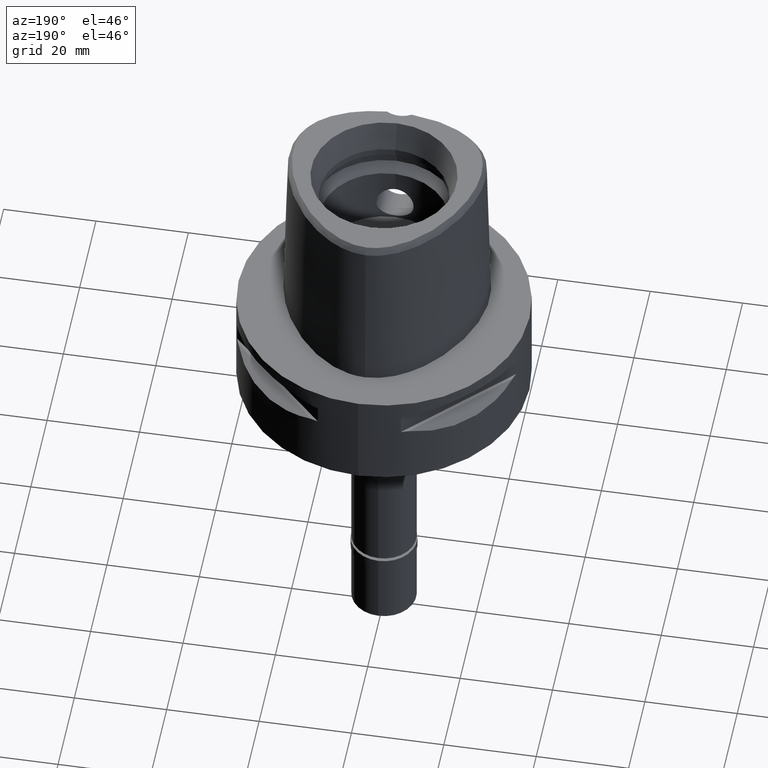
[diagram: clean part render]
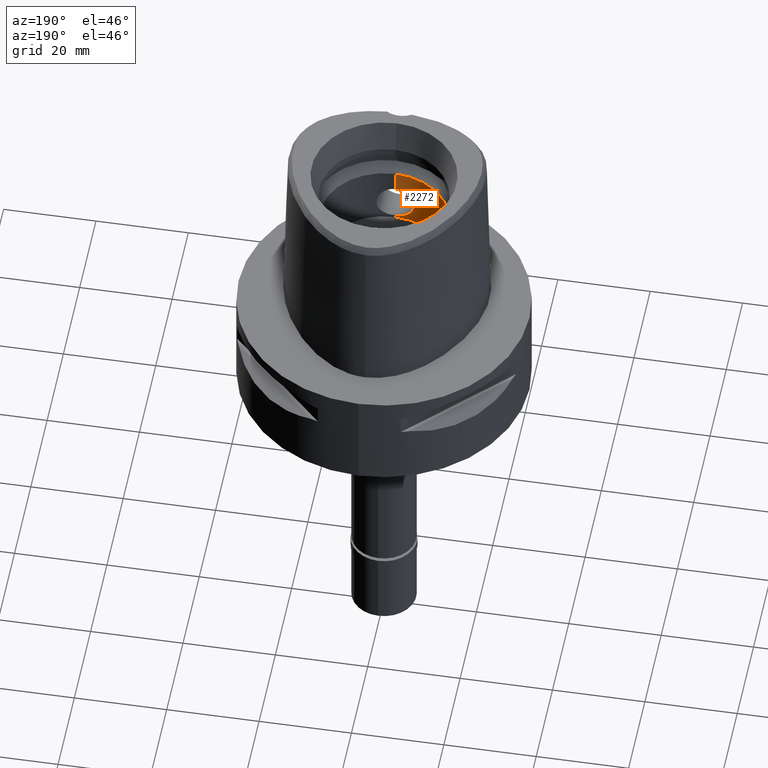
[diagram: same view with one face highlighted and labeled with its STEP entity id]
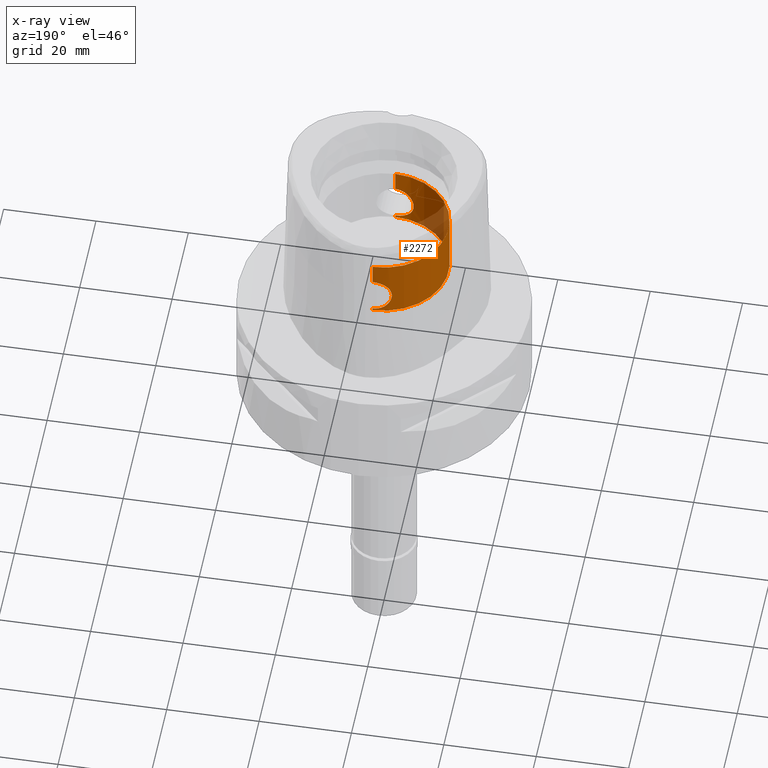
[diagram: x-ray of the same camera — body ghosted, the highlighted face saturated]
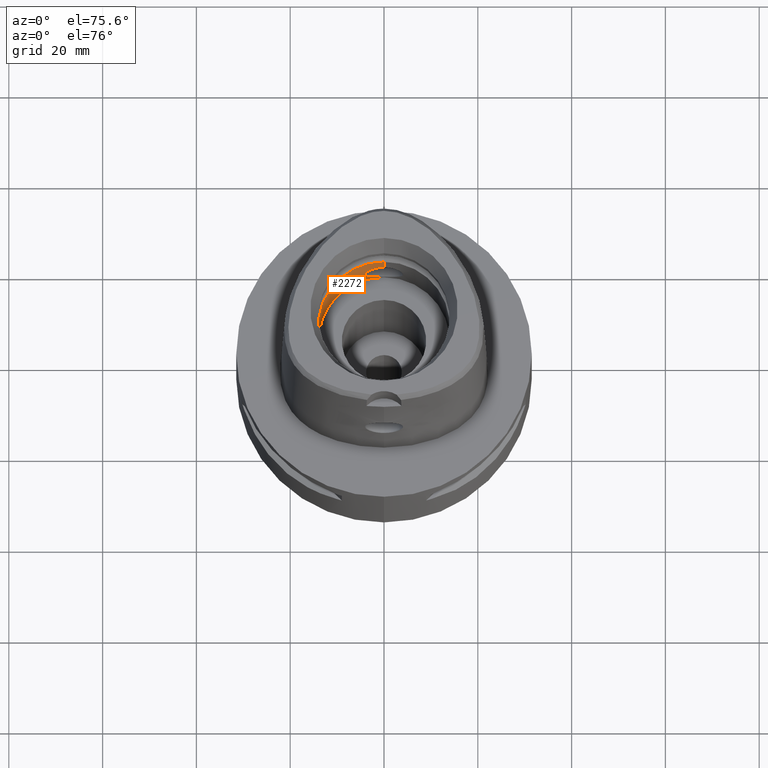
[diagram: same view with one face highlighted and labeled with its STEP entity id]
A machine part, auxiliary view. The second image highlights one B-rep face of the part: STEP entity #2272.
The next image is the same camera in x-ray: the body ghosted, the highlighted face saturated — about 12% of this face is hidden behind the body in this view.
A second angle (auxiliary view) of the same face is appended — the face is thin or edge-on in the first view.
In plain terms, the highlighted cylindrical surface (partial cylindrical patch) has radius 14 mm, axis along (0, 0, 1).
Its self-contained STEP definition (entity closure, byte-faithful):
#83 = CARTESIAN_POINT ( 'NONE',  ( -3.925365162342238534, 13.43890284051469841, 16.53186132714332146 ) ) ;
#109 = CARTESIAN_POINT ( 'NONE',  ( -3.379310550229385424, 13.58604378653552125, 13.26778871574185992 ) ) ;
#119 = FACE_OUTER_BOUND ( 'NONE', #4032, .T. ) ;
#132 = CARTESIAN_POINT ( 'NONE',  ( -3.651131004707755867, 13.51578636749438900, 13.74236146889735899 ) ) ;
#155 = CARTESIAN_POINT ( 'NONE',  ( -3.021351022777473361, 13.67020000561565141, 12.80268817491275790 ) ) ;
#170 = CARTESIAN_POINT ( 'NONE',  ( 0.0000000000000000000, 14.00000000000000000, 24.19999999999999929 ) ) ;
#182 = CARTESIAN_POINT ( 'NONE',  ( -2.358129775491658808, 13.79992184182584758, 12.20719851427345581 ) ) ;
#184 = VERTEX_POINT ( 'NONE', #3442 ) ;
#201 = CARTESIAN_POINT ( 'NONE',  ( -3.734034901120667715, -13.49288178664349225, 13.93170759821282978 ) ) ;
#212 = DIRECTION ( 'NONE',  ( 0.0000000000000000000, -1.000000000000000000, 0.0000000000000000000 ) ) ;
#215 = ORIENTED_EDGE ( 'NONE', *, *, #1820, .T. ) ;
#223 = CARTESIAN_POINT ( 'NONE',  ( -1.012712309533722266, -13.96360199423262749, 11.57638702676245579 ) ) ;
#249 = CARTESIAN_POINT ( 'NONE',  ( -2.555012852223031761, -13.76484697358297460, 12.35693833583290058 ) ) ;
#269 = CARTESIAN_POINT ( 'NONE',  ( -2.324657710884288075, -13.80563617599062454, 18.81657064960871750 ) ) ;
#275 = CARTESIAN_POINT ( 'NONE',  ( -3.847560840230902279, -13.46133700407186495, 14.20480240807005323 ) ) ;
#283 = VERTEX_POINT ( 'NONE', #1607 ) ;
#294 = CARTESIAN_POINT ( 'NONE',  ( -1.831923549672926477, -13.87967697729060035, 19.11262542192537950 ) ) ;
#299 = CARTESIAN_POINT ( 'NONE',  ( -2.609777199255221003, -13.75461077519338815, 12.40205918377870198 ) ) ;
#317 = CARTESIAN_POINT ( 'NONE',  ( -2.358108071912459636, -13.79992559224141147, 18.79281702996953030 ) ) ;
#325 = CARTESIAN_POINT ( 'NONE',  ( -3.792805150613220100, -13.47648688778276416, 16.92098040476935594 ) ) ;
#346 = CARTESIAN_POINT ( 'NONE',  ( -3.021323242860278757, -13.67020613662201356, 18.19734294959320664 ) ) ;
#362 = CARTESIAN_POINT ( 'NONE',  ( -2.609741565278369979, 13.75461757722162126, 18.59797076234260871 ) ) ;
#382 = CARTESIAN_POINT ( 'NONE',  ( -1.634612803771663403, 13.90466238694206780, 19.20741225445335942 ) ) ;
#426 = CARTESIAN_POINT ( 'NONE',  ( -3.412447717858382301, -13.57777954043734425, 17.68134576836865079 ) ) ;
#453 = CARTESIAN_POINT ( 'NONE',  ( -2.213941909848230249, 13.82381574778073130, 18.89130965221159641 ) ) ;
#476 = CARTESIAN_POINT ( 'NONE',  ( -1.029082083449200713, 13.97152853599253319, 11.54362413269657139 ) ) ;
#482 = CARTESIAN_POINT ( 'NONE',  ( 0.0000000000000000000, 14.00000000000000000, 19.55000000000000071 ) ) ;
#498 = CARTESIAN_POINT ( 'NONE',  ( -2.262705485419163054, 13.81592537114580566, 12.14103098720228679 ) ) ;
#524 = CARTESIAN_POINT ( 'NONE',  ( -3.697590507856375108, 13.50295664692586506, 17.15287807673693976 ) ) ;
#547 = CARTESIAN_POINT ( 'NONE',  ( -3.526250119772631031, 13.54878316617015699, 13.50678668749269384 ) ) ;
#565 = CARTESIAN_POINT ( 'NONE',  ( -3.719169916383281205, -13.49700080574766936, 13.89666466194681149 ) ) ;
#571 = CARTESIAN_POINT ( 'NONE',  ( -1.571622442681948728, 13.91143413234359194, 11.76734124217015420 ) ) ;
#590 = CARTESIAN_POINT ( 'NONE',  ( -0.2469654516578040637, -14.00000000000000178, 11.44999999999999751 ) ) ;
#600 = CARTESIAN_POINT ( 'NONE',  ( 0.0000000000000000000, 14.00000000000000000, 11.00000000000000000 ) ) ;
#615 = CARTESIAN_POINT ( 'NONE',  ( -2.218906381581557063, -13.82301934416505773, 12.11193804182300049 ) ) ;
#620 = CARTESIAN_POINT ( 'NONE',  ( -0.4993407830487584520, 13.99999999999999645, 11.44999999999999751 ) ) ;
#636 = CARTESIAN_POINT ( 'NONE',  ( -3.145387978891098779, -13.64232260952897136, 18.05215185636368247 ) ) ;
#664 = CARTESIAN_POINT ( 'NONE',  ( -2.213979135491244143, -13.82380976881560031, 12.10871464975564749 ) ) ;
#689 = CARTESIAN_POINT ( 'NONE',  ( -4.019830419769267138, -13.41085009236225645, 14.98991540867759831 ) ) ;
#707 = CARTESIAN_POINT ( 'NONE',  ( -1.559432113073478288, -13.91280656169065821, 19.23777656501210487 ) ) ;
#726 = CARTESIAN_POINT ( 'NONE',  ( -2.206458694403367726, 13.82501216787645681, 18.89618314689560563 ) ) ;
#770 = CARTESIAN_POINT ( 'NONE',  ( -2.833282652835806381, 13.71030165836393522, 18.39398494405404350 ) ) ;
#782 = VECTOR ( 'NONE', #3214, 1000.000000000000000 ) ;
#787 = CIRCLE ( 'NONE', #3808, 14.00000000000000000 ) ;
#798 = CARTESIAN_POINT ( 'NONE',  ( 0.0000000000000000000, -14.00000000000000000, 19.55000000000000071 ) ) ;
#800 = CARTESIAN_POINT ( 'NONE',  ( -1.012706264063385930, 13.96360253211542535, 19.42361449288681996 ) ) ;
#850 = CARTESIAN_POINT ( 'NONE',  ( -4.019809843161508134, 13.41085631805639267, 16.01024435030240767 ) ) ;
#874 = CARTESIAN_POINT ( 'NONE',  ( -3.761640784819787253, 13.48520403954923275, 13.99912269595868253 ) ) ;
#899 = CARTESIAN_POINT ( 'NONE',  ( -2.750910965615486425, 13.72764871314797119, 12.52253045585310964 ) ) ;
#922 = CARTESIAN_POINT ( 'NONE',  ( -1.831935694979672569, 13.87967536010571834, 11.88738069559548194 ) ) ;
#939 = CARTESIAN_POINT ( 'NONE',  ( -3.353424358366101643, -13.59245713650906673, 13.22908235703174107 ) ) ;
#946 = CARTESIAN_POINT ( 'NONE',  ( -3.755227753165154780, 13.48699341544818253, 13.98314845892416081 ) ) ;
#965 = CARTESIAN_POINT ( 'NONE',  ( -3.607781059749434416, -13.52732055342975315, 13.65853826094933687 ) ) ;
#976 = CARTESIAN_POINT ( 'NONE',  ( 0.0000000000000000000, 0.0000000000000000000, 11.00000000000000000 ) ) ;
#991 = CARTESIAN_POINT ( 'NONE',  ( -3.313184699048540072, -13.60235767227842096, 13.17057167031289744 ) ) ;
#1012 = CARTESIAN_POINT ( 'NONE',  ( -2.270168441564218487, -13.81470081046394682, 18.85393787176648317 ) ) ;
#1018 = CARTESIAN_POINT ( 'NONE',  ( -2.826776481428380006, -13.71164377476135243, 12.59966512012106143 ) ) ;
#1039 = CARTESIAN_POINT ( 'NONE',  ( -2.477086002765913619, -13.77907045266050012, 18.70484860139355376 ) ) ;
#1066 = CARTESIAN_POINT ( 'NONE',  ( -2.262680939054479978, -13.81592940916815060, 18.85898554796631998 ) ) ;
#1072 = CARTESIAN_POINT ( 'NONE',  ( -4.027089452593229701, -13.40881618561212818, 16.00364091066859018 ) ) ;
#1088 = CARTESIAN_POINT ( 'NONE',  ( -3.382835449347523671, -13.58516794404791383, 17.72686886806867435 ) ) ;
#1106 = CARTESIAN_POINT ( 'NONE',  ( -3.346018921403583146, 13.59428229746734829, 17.78182038492254335 ) ) ;
#1117 = AXIS2_PLACEMENT_3D ( 'NONE', #976, #4801, #212 ) ;
#1128 = CARTESIAN_POINT ( 'NONE',  ( -2.976320175289993486, 13.68063800314661371, 18.25312853236753341 ) ) ;
#1171 = CARTESIAN_POINT ( 'NONE',  ( -2.904292684485286102, -13.69547553576702192, 18.32302670779527176 ) ) ;
#1173 = CARTESIAN_POINT ( 'NONE',  ( -1.983184215533064787, 13.85889975698272636, 19.03188336225688104 ) ) ;
#1192 = VECTOR ( 'NONE', #1654, 1000.000000000000000 ) ;
#1227 = CARTESIAN_POINT ( 'NONE',  ( -3.953306027474014606, 13.43063046357534418, 14.61060429633075408 ) ) ;
#1250 = CARTESIAN_POINT ( 'NONE',  ( -2.477107187807540800, 13.77906657584262717, 12.29516774357917086 ) ) ;
#1258 = VERTEX_POINT ( 'NONE', #2788 ) ;
#1276 = CARTESIAN_POINT ( 'NONE',  ( -3.922131962950538675, 13.43972119090175354, 14.48144363887699626 ) ) ;
#1280 = CARTESIAN_POINT ( 'NONE',  ( 0.0000000000000000000, -14.00000000000000000, 19.55000000000000071 ) ) ;
#1298 = CARTESIAN_POINT ( 'NONE',  ( -1.686087381662598750, 13.89805129530453520, 11.81752317166705346 ) ) ;
#1301 = DIRECTION ( 'NONE',  ( 0.0000000000000000000, 0.0000000000000000000, 1.000000000000000000 ) ) ;
#1320 = CARTESIAN_POINT ( 'NONE',  ( -1.600043328953376642, 13.90819633065369842, 11.77943554682664029 ) ) ;
#1323 = CARTESIAN_POINT ( 'NONE',  ( 0.0000000000000000000, -14.00000000000000000, 19.55000000000000071 ) ) ;
#1338 = CARTESIAN_POINT ( 'NONE',  ( -1.983212526419743105, -13.85889570096420975, 11.96813247595848750 ) ) ;
#1341 = VECTOR ( 'NONE', #1301, 1000.000000000000000 ) ;
#1365 = CARTESIAN_POINT ( 'NONE',  ( -2.789590418607238220, -13.71926382878578288, 12.56377418278845504 ) ) ;
#1389 = CARTESIAN_POINT ( 'NONE',  ( -3.512628331526865821, -13.55245697554484252, 13.47955345271105720 ) ) ;
#1410 = CARTESIAN_POINT ( 'NONE',  ( -3.761606907749989404, -13.48521357189873981, 17.00096220363059274 ) ) ;
#1444 = CARTESIAN_POINT ( 'NONE',  ( -3.922099599626726718, -13.43973056494798612, 16.51867972472770063 ) ) ;
#1464 = CARTESIAN_POINT ( 'NONE',  ( -3.703589315040705543, -13.50137962951083459, 17.14320704428214626 ) ) ;
#1482 = CARTESIAN_POINT ( 'NONE',  ( 0.0000000000000000000, 14.00000000000000000, 19.55000000000000071 ) ) ;
#1504 = CARTESIAN_POINT ( 'NONE',  ( -1.749105788501651215, 13.89074138091394772, 19.15519283209804513 ) ) ;
#1542 = EDGE_CURVE ( 'NONE', #2726, #2252, #2496, .T. ) ;
#1552 = CARTESIAN_POINT ( 'NONE',  ( -3.651095676336898244, -13.51579605380715066, 17.25771149767267332 ) ) ;
#1555 = CARTESIAN_POINT ( 'NONE',  ( -0.8843538958436223396, 13.97226859589746262, 19.45441039601426780 ) ) ;
#1562 = EDGE_CURVE ( 'NONE', #283, #1258, #4058, .T. ) ;
#1605 = CARTESIAN_POINT ( 'NONE',  ( -3.719141286413738978, 13.49700888169047630, 17.10340174556556292 ) ) ;
#1607 = CARTESIAN_POINT ( 'NONE',  ( 0.0000000000000000000, 14.00000000000000000, 11.00000000000000000 ) ) ;
#1623 = CARTESIAN_POINT ( 'NONE',  ( 0.0000000000000000000, 0.0000000000000000000, 24.19999999999999929 ) ) ;
#1627 = CARTESIAN_POINT ( 'NONE',  ( -2.904327125639351248, 13.69546822798182006, 12.67700868776273815 ) ) ;
#1649 = CARTESIAN_POINT ( 'NONE',  ( -4.027110952382225939, 13.40880970406411876, 14.99652166335192582 ) ) ;
#1654 = DIRECTION ( 'NONE',  ( 0.0000000000000000000, 0.0000000000000000000, 1.000000000000000000 ) ) ;
#1675 = CARTESIAN_POINT ( 'NONE',  ( -2.131073088209908928, 13.83739862213081651, 12.05290093770904392 ) ) ;
#1696 = CARTESIAN_POINT ( 'NONE',  ( -4.049978934582115109, 13.40153109434733203, 15.25162441043622685 ) ) ;
#1710 = CARTESIAN_POINT ( 'NONE',  ( 0.0000000000000000000, -14.00000000000000000, 24.19999999999999929 ) ) ;
#1717 = CARTESIAN_POINT ( 'NONE',  ( -3.346049572253308568, -13.59427474891737120, 13.21822455956166742 ) ) ;
#1766 = CARTESIAN_POINT ( 'NONE',  ( -3.082282372579373320, -13.65694394277110746, 12.86939697141056982 ) ) ;
#1782 = ORIENTED_EDGE ( 'NONE', *, *, #3970, .F. ) ;
#1786 = CARTESIAN_POINT ( 'NONE',  ( -3.331071169110157104, -13.59802040080378127, 17.80513431074203723 ) ) ;
#1813 = CARTESIAN_POINT ( 'NONE',  ( 0.0000000000000000000, -14.00000000000000000, 11.00000000000000000 ) ) ;
#1820 = EDGE_CURVE ( 'NONE', #2285, #2252, #787, .T. ) ;
#1839 = CARTESIAN_POINT ( 'NONE',  ( -2.131051694124752149, -13.83740188295394269, 18.94711207276987253 ) ) ;
#1844 = CARTESIAN_POINT ( 'NONE',  ( -4.001310447421740690, -13.41645740486286975, 14.85992201994323381 ) ) ;
#1876 = CARTESIAN_POINT ( 'NONE',  ( -1.509683146060374570, 13.91832371278619362, 19.25813534163470919 ) ) ;
#1897 = CARTESIAN_POINT ( 'NONE',  ( -2.826733677213231211, 13.71165257480208410, 18.40037659590203845 ) ) ;
#1922 = CARTESIAN_POINT ( 'NONE',  ( -2.936101291707196026, -13.68870374988638439, 18.28991236403437881 ) ) ;
#1924 = CARTESIAN_POINT ( 'NONE',  ( -3.313156087630972024, 13.60236462085056175, 17.82946899553707709 ) ) ;
#1945 = DIRECTION ( 'NONE',  ( 0.0000000000000000000, 1.000000000000000000, 0.0000000000000000000 ) ) ;
#1950 = CARTESIAN_POINT ( 'NONE',  ( -2.072169707285811846, 13.84579259454496558, 18.97991273360965536 ) ) ;
#1974 = CARTESIAN_POINT ( 'NONE',  ( -2.398040422234643199, 13.79336776943800835, 18.76643699166558221 ) ) ;
#1998 = CARTESIAN_POINT ( 'NONE',  ( -3.736458655016853481, 13.49220923554634943, 17.06251515867592872 ) ) ;
#2019 = CARTESIAN_POINT ( 'NONE',  ( -3.847528114546067357, 13.46134616528927275, 16.79528946262643885 ) ) ;
#2044 = CARTESIAN_POINT ( 'NONE',  ( -3.792839415321074270, 13.47647720445098152, 14.07911095248699063 ) ) ;
#2072 = CARTESIAN_POINT ( 'NONE',  ( -4.050010510829319621, 13.40151602470820968, 15.62367220053247685 ) ) ;
#2090 = CARTESIAN_POINT ( 'NONE',  ( -1.749124970137840185, -13.89073896556024046, 11.84481614608584721 ) ) ;
#2116 = CARTESIAN_POINT ( 'NONE',  ( 0.0000000000000000000, -14.00000000000000000, 11.44999999999999929 ) ) ;
#2160 = CARTESIAN_POINT ( 'NONE',  ( -3.379279769507297360, -13.58605140470811534, 17.73225788171025030 ) ) ;
#2167 = CARTESIAN_POINT ( 'NONE',  ( -2.195272652538321267, -13.82679577862125697, 12.09655807399984262 ) ) ;
#2208 = CARTESIAN_POINT ( 'NONE',  ( -3.473317543067086621, -13.56237997985438426, 17.58321264728286693 ) ) ;
#2213 = CARTESIAN_POINT ( 'NONE',  ( -3.953275717035933390, -13.43063932535957505, 16.38952909542953407 ) ) ;
#2233 = CARTESIAN_POINT ( 'NONE',  ( -3.751516267919946745, -13.48802816047849795, 17.02600169488797732 ) ) ;
#2250 = CARTESIAN_POINT ( 'NONE',  ( -2.554978397349259911, 13.76485342384095212, 18.64308964410447089 ) ) ;
#2252 = VERTEX_POINT ( 'NONE', #1710 ) ;
#2272 = ADVANCED_FACE ( 'NONE', ( #119 ), #4234, .F. ) ;
#2273 = CARTESIAN_POINT ( 'NONE',  ( -3.291389730841669525, 13.60767728430549361, 17.86007817227883265 ) ) ;
#2285 = VERTEX_POINT ( 'NONE', #170 ) ;
#2296 = CARTESIAN_POINT ( 'NONE',  ( -3.512596035733583477, 13.55246554407546533, 17.52050250960606803 ) ) ;
#2310 = CIRCLE ( 'NONE', #1117, 14.00000000000000000 ) ;
#2320 = CARTESIAN_POINT ( 'NONE',  ( -3.268832484546335682, -13.61344831520168164, 17.89478866097769583 ) ) ;
#2321 = CARTESIAN_POINT ( 'NONE',  ( -3.335550015220702491, 13.59686070643671130, 17.79713041138287721 ) ) ;
#2343 = CARTESIAN_POINT ( 'NONE',  ( 0.0000000000000000000, -14.00000000000000000, 11.00000000000000000 ) ) ;
#2346 = CARTESIAN_POINT ( 'NONE',  ( -1.204860768877034749, 13.94800361730774441, 19.36720398920682840 ) ) ;
#2368 = CARTESIAN_POINT ( 'NONE',  ( -2.287961417577151657, 13.81176381413322218, 12.15814410366461473 ) ) ;
#2393 = CARTESIAN_POINT ( 'NONE',  ( -3.728097427948782183, 13.49452826340539779, 17.08235497505697964 ) ) ;
#2416 = CARTESIAN_POINT ( 'NONE',  ( -4.044171514740741991, 13.40338199514034478, 15.75277901723292828 ) ) ;
#2427 = VECTOR ( 'NONE', #2948, 1000.000000000000000 ) ;
#2441 = CARTESIAN_POINT ( 'NONE',  ( -3.771176360812481754, 13.48254127031982286, 14.02309580800305966 ) ) ;
#2459 = CARTESIAN_POINT ( 'NONE',  ( -3.207909801889438750, -13.62775995098249204, 13.02687971733560524 ) ) ;
#2466 = CARTESIAN_POINT ( 'NONE',  ( -3.864991936700474362, 13.45608299312539380, 14.28803614817276113 ) ) ;
#2486 = CARTESIAN_POINT ( 'NONE',  ( -3.353237812350305713, -13.59250310729059841, 13.22881030265781988 ) ) ;
#2496 = LINE ( 'NONE', #1323, #782 ) ;
#2514 = CARTESIAN_POINT ( 'NONE',  ( -1.634627542067088823, -13.90466063450469925, 11.79259409323903718 ) ) ;
#2540 = CARTESIAN_POINT ( 'NONE',  ( -3.350382862332021539, -13.59320680619205390, 13.22460088264036315 ) ) ;
#2545 = CARTESIAN_POINT ( 'NONE',  ( 0.0000000000000000000, 14.00000000000000000, 11.44999999999999929 ) ) ;
#2547 = ORIENTED_EDGE ( 'NONE', *, *, #3772, .F. ) ;
#2557 = CARTESIAN_POINT ( 'NONE',  ( -3.755193978868522464, -13.48700291079213009, 17.01693514898615334 ) ) ;
#2563 = CARTESIAN_POINT ( 'NONE',  ( -2.072201475309193963, -13.84578783145112624, 12.02010616845740287 ) ) ;
#2579 = CARTESIAN_POINT ( 'NONE',  ( -2.287937912488490433, -13.81176773107643463, 18.84187199136939128 ) ) ;
#2586 = CARTESIAN_POINT ( 'NONE',  ( -4.050016519469054721, -13.40151404079456476, 15.37653284281552679 ) ) ;
#2610 = EDGE_CURVE ( 'NONE', #184, #2285, #3870, .T. ) ;
#2643 = CARTESIAN_POINT ( 'NONE',  ( -3.244203933889227454, 13.61909597458700993, 17.92497467895347540 ) ) ;
#2645 = ORIENTED_EDGE ( 'NONE', *, *, #2970, .T. ) ;
#2666 = CARTESIAN_POINT ( 'NONE',  ( -0.2469645450537018838, 14.00000000000000000, 19.55000000000000426 ) ) ;
#2687 = CARTESIAN_POINT ( 'NONE',  ( -2.256602342493059243, -13.81692491008516299, 18.86307401461547428 ) ) ;
#2690 = CARTESIAN_POINT ( 'NONE',  ( -1.924243521165028392, 13.86719346395510932, 19.06428299887258859 ) ) ;
#2726 = VERTEX_POINT ( 'NONE', #1280 ) ;
#2740 = CARTESIAN_POINT ( 'NONE',  ( -3.751549856549362350, 13.48801872156404258, 13.97408088082220523 ) ) ;
#2760 = CARTESIAN_POINT ( 'NONE',  ( -2.634443624300868869, 13.75015732437147697, 12.42099918202132969 ) ) ;
#2784 = CARTESIAN_POINT ( 'NONE',  ( -2.257742642029090252, 13.81673809093031302, 12.13769318695560706 ) ) ;
#2788 = CARTESIAN_POINT ( 'NONE',  ( 0.0000000000000000000, 14.00000000000000000, 11.44999999999999929 ) ) ;
#2806 = CARTESIAN_POINT ( 'NONE',  ( -3.703624104408048012, 13.50136991639988437, 13.85687112133432031 ) ) ;
#2822 = DIRECTION ( 'NONE',  ( 0.0000000000000000000, 0.0000000000000000000, 1.000000000000000000 ) ) ;
#2826 = CARTESIAN_POINT ( 'NONE',  ( -1.924269530046975651, -13.86718984433881374, 11.93573099114258973 ) ) ;
#2832 = CARTESIAN_POINT ( 'NONE',  ( -1.559435365530769113, 13.91280614147713202, 11.76222479158524514 ) ) ;
#2851 = CARTESIAN_POINT ( 'NONE',  ( -2.206495634273682782, -13.82500625603302247, 12.10384085250651509 ) ) ;
#2876 = CARTESIAN_POINT ( 'NONE',  ( -2.811876215899639764, -13.71470550586680126, 12.58521701702220952 ) ) ;
#2895 = CARTESIAN_POINT ( 'NONE',  ( -3.526215793493937323, -13.54879215793920721, 17.49327392317799479 ) ) ;
#2903 = CARTESIAN_POINT ( 'NONE',  ( -3.291417599965290819, -13.60767057052336781, 13.13996068370695269 ) ) ;
#2904 = ORIENTED_EDGE ( 'NONE', *, *, #4025, .F. ) ;
#2923 = CARTESIAN_POINT ( 'NONE',  ( -1.571618383406467645, -13.91143464434279053, 19.23266046496124559 ) ) ;
#2927 = CARTESIAN_POINT ( 'NONE',  ( -1.412405941508137142, -13.92855808094171621, 11.70399751527032350 ) ) ;
#2948 = DIRECTION ( 'NONE',  ( 0.0000000000000000000, 0.0000000000000000000, 1.000000000000000000 ) ) ;
#2955 = CARTESIAN_POINT ( 'NONE',  ( -3.925397087776428151, -13.43889368793335137, 14.46825479304431461 ) ) ;
#2970 = EDGE_CURVE ( 'NONE', #4085, #283, #2310, .T. ) ;
#2974 = CARTESIAN_POINT ( 'NONE',  ( -1.686079774056026270, -13.89805225495445917, 19.18248030263400494 ) ) ;
#2988 = CARTESIAN_POINT ( 'NONE',  ( -2.789549051450811223, 13.71927222782416322, 18.43626510498189575 ) ) ;
#3010 = CARTESIAN_POINT ( 'NONE',  ( -3.353206584566348347, 13.59251082249012832, 17.77123580180266771 ) ) ;
#3033 = CARTESIAN_POINT ( 'NONE',  ( -0.5007259895757725232, 13.99306714897436521, 19.52734988002798744 ) ) ;
#3057 = CARTESIAN_POINT ( 'NONE',  ( -3.445973088962319242, -13.56934735979278983, 17.62837875858821590 ) ) ;
#3077 = DIRECTION ( 'NONE',  ( 0.0000000000000000000, 0.0000000000000000000, 1.000000000000000000 ) ) ;
#3078 = CARTESIAN_POINT ( 'NONE',  ( 0.0000000000000000000, -14.00000000000000000, 11.44999999999999929 ) ) ;
#3081 = CARTESIAN_POINT ( 'NONE',  ( -2.195236141594340218, 13.82680159019207444, 18.90346547399944654 ) ) ;
#3108 = CARTESIAN_POINT ( 'NONE',  ( -3.331098129623040638, 13.59801387529240557, 13.19490433802106999 ) ) ;
#3131 = CARTESIAN_POINT ( 'NONE',  ( -2.256627462073926171, 13.81692079054867861, 12.13694284039161531 ) ) ;
#3155 = CARTESIAN_POINT ( 'NONE',  ( -3.387853082217509915, 13.58391951359694616, 13.28077217744259464 ) ) ;
#3168 = CARTESIAN_POINT ( 'NONE',  ( 0.0000000000000000000, 0.0000000000000000000, -1.899999999999999911 ) ) ;
#3186 = CARTESIAN_POINT ( 'NONE',  ( -1.773149632644968055, 13.88730197756411044, 11.85822222266450510 ) ) ;
#3205 = VERTEX_POINT ( 'NONE', #3078 ) ;
#3210 = CARTESIAN_POINT ( 'NONE',  ( -3.833828838902351155, 13.46494532204571648, 14.19141781032726257 ) ) ;
#3214 = DIRECTION ( 'NONE',  ( 0.0000000000000000000, 0.0000000000000000000, 1.000000000000000000 ) ) ;
#3228 = CARTESIAN_POINT ( 'NONE',  ( -3.736486422803455554, -13.49220139899659721, 13.93755124005273771 ) ) ;
#3252 = AXIS2_PLACEMENT_3D ( 'NONE', #3168, #2822, #4609 ) ;
#3254 = CARTESIAN_POINT ( 'NONE',  ( -2.169102661691550082, -13.83093487366183361, 12.07975962667247849 ) ) ;
#3269 = ORIENTED_EDGE ( 'NONE', *, *, #1562, .T. ) ;
#3274 = CARTESIAN_POINT ( 'NONE',  ( -2.257717869782496223, -13.81674215601116629, 18.86232344724177068 ) ) ;
#3279 = CARTESIAN_POINT ( 'NONE',  ( -1.491858237923191943, -13.92024395313622165, 11.73474438458876179 ) ) ;
#3299 = CARTESIAN_POINT ( 'NONE',  ( -1.642828675273390937, -13.90325408293436027, 19.20206954672913113 ) ) ;
#3305 = CARTESIAN_POINT ( 'NONE',  ( -3.335579916853370186, -13.59685337588842557, 13.20291300020636172 ) ) ;
#3322 = CARTESIAN_POINT ( 'NONE',  ( -3.099199479236902643, -13.65290277809314290, 18.10838553326945188 ) ) ;
#3331 = CARTESIAN_POINT ( 'NONE',  ( -2.303336017421245607, -13.80944740760731015, 12.16732381344400515 ) ) ;
#3350 = CARTESIAN_POINT ( 'NONE',  ( -3.559093442112010841, -13.54019619394457585, 17.43384105009161189 ) ) ;
#3356 = CARTESIAN_POINT ( 'NONE',  ( -4.049966852785007454, -13.40153486447087161, 15.74855638966741722 ) ) ;
#3392 = CARTESIAN_POINT ( 'NONE',  ( -3.350351868261686406, 13.59321445395994132, 17.77544475323062301 ) ) ;
#3415 = CARTESIAN_POINT ( 'NONE',  ( -3.353392917128058315, 13.59246490489702985, 17.77096407070282424 ) ) ;
#3440 = CARTESIAN_POINT ( 'NONE',  ( -2.694785868530886308, 13.73816721016216924, 18.52358191442435498 ) ) ;
#3442 = CARTESIAN_POINT ( 'NONE',  ( 0.0000000000000000000, 14.00000000000000000, 19.55000000000000071 ) ) ;
#3465 = CARTESIAN_POINT ( 'NONE',  ( -1.412396425503181563, 13.92855913669678891, 19.29600601996543929 ) ) ;
#3491 = CARTESIAN_POINT ( 'NONE',  ( -3.268857447365028257, 13.61344237206611396, 13.10524533302086425 ) ) ;
#3518 = CARTESIAN_POINT ( 'NONE',  ( -3.412479443362093967, 13.57777158534412543, 13.31870384960706666 ) ) ;
#3543 = CARTESIAN_POINT ( 'NONE',  ( -3.473350821294224566, 13.56237143548219848, 13.41684281046701877 ) ) ;
#3565 = CARTESIAN_POINT ( 'NONE',  ( -3.382866274391088002, 13.58516030417729326, 13.27317795845943138 ) ) ;
#3587 = CARTESIAN_POINT ( 'NONE',  ( -3.734006775410973589, 13.49288972320614555, 17.06835936588234404 ) ) ;
#3604 = CARTESIAN_POINT ( 'NONE',  ( -2.116839058079374336, -13.83906723308178854, 12.04693575123328486 ) ) ;
#3651 = CARTESIAN_POINT ( 'NONE',  ( -1.509693173942641797, -13.91832254871366459, 11.74186868436828313 ) ) ;
#3673 = CARTESIAN_POINT ( 'NONE',  ( -2.634420021907286191, -13.75016191627403650, 18.57902088982621436 ) ) ;
#3679 = CARTESIAN_POINT ( 'NONE',  ( -3.728125757089613135, -13.49452026991371234, 13.91771177100517143 ) ) ;
#3698 = LINE ( 'NONE', #1813, #2427 ) ;
#3704 = CARTESIAN_POINT ( 'NONE',  ( -0.5007283083387408240, -13.99306704652050470, 11.47265028558023658 ) ) ;
#3719 = CARTESIAN_POINT ( 'NONE',  ( -2.993931333541139939, -13.67621277374539979, 18.22776043013259084 ) ) ;
#3725 = CARTESIAN_POINT ( 'NONE',  ( -3.833794421654092233, -13.46495511066248518, 16.80868257683941280 ) ) ;
#3748 = CARTESIAN_POINT ( 'NONE',  ( -3.395272223523020827, -13.58207152343872082, 17.70788818820463106 ) ) ;
#3765 = CARTESIAN_POINT ( 'NONE',  ( -3.082252983253662482, 13.65695054014003773, 18.13063750366736926 ) ) ;
#3772 = EDGE_CURVE ( 'NONE', #184, #1258, #4880, .T. ) ;
#3787 = CARTESIAN_POINT ( 'NONE',  ( -1.460085292690229020, 13.92360323147143752, 19.27769000627201734 ) ) ;
#3808 = AXIS2_PLACEMENT_3D ( 'NONE', #1623, #3077, #1945 ) ;
#3812 = CARTESIAN_POINT ( 'NONE',  ( -3.607749800214310909, 13.52732914499299355, 17.34152293074171425 ) ) ;
#3837 = CARTESIAN_POINT ( 'NONE',  ( -2.750883295189316957, -13.72765425127525241, 18.47749454030241623 ) ) ;
#3866 = CARTESIAN_POINT ( 'NONE',  ( -2.116805560536566766, 13.83907236283130793, 18.95308475562033124 ) ) ;
#3870 = LINE ( 'NONE', #482, #1192 ) ;
#3887 = CARTESIAN_POINT ( 'NONE',  ( -2.010021448992823423, 13.85541429083622766, 11.98142922609531880 ) ) ;
#3910 = CARTESIAN_POINT ( 'NONE',  ( -3.099225327020578735, 13.65289692606663152, 12.89164520995896446 ) ) ;
#3936 = CARTESIAN_POINT ( 'NONE',  ( -3.395303435852907725, 13.58206374946664319, 13.29215980719855850 ) ) ;
#3955 = CARTESIAN_POINT ( 'NONE',  ( -4.001286225958791576, 13.41646460474673219, 16.14022722684877209 ) ) ;
#3970 = EDGE_CURVE ( 'NONE', #3205, #2726, #4160, .T. ) ;
#3973 = CARTESIAN_POINT ( 'NONE',  ( -3.697619808154222643, -13.50294839919402889, 13.84718746078642937 ) ) ;
#3979 = CARTESIAN_POINT ( 'NONE',  ( -3.446005740202097378, 13.56933906582517224, 13.37167405381495300 ) ) ;
#3997 = CARTESIAN_POINT ( 'NONE',  ( -3.678000185892688290, -13.50832006757738846, 13.80417077091061628 ) ) ;
#4023 = CARTESIAN_POINT ( 'NONE',  ( -2.398073033372259300, -13.79336204944386246, 12.23358684093092208 ) ) ;
#4025 = EDGE_CURVE ( 'NONE', #4085, #3205, #3698, .T. ) ;
#4032 = EDGE_LOOP ( 'NONE', ( #4377, #215, #4868, #1782, #2904, #2645, #3269, #2547 ) ) ;
#4044 = CARTESIAN_POINT ( 'NONE',  ( -2.427498597422347526, -13.78789780460403414, 18.74237894858339715 ) ) ;
#4050 = CARTESIAN_POINT ( 'NONE',  ( -3.637154191974512507, -13.51942837920227092, 13.71739012948868464 ) ) ;
#4058 = LINE ( 'NONE', #600, #1341 ) ;
#4072 = CARTESIAN_POINT ( 'NONE',  ( -2.694823955574222385, -13.73815971795508695, 12.47645201276648130 ) ) ;
#4085 = VERTEX_POINT ( 'NONE', #2343 ) ;
#4095 = CARTESIAN_POINT ( 'NONE',  ( -3.864957960024414607, -13.45609271383950478, 16.71207193680274372 ) ) ;
#4160 = B_SPLINE_CURVE_WITH_KNOTS ( 'NONE', 3,
 ( #2116, #590, #3704, #4436, #223, #4815, #4409, #2927, #4333, #3279, #3651, #2514, #2090, #2826, #1338, #2563, #3604, #3254, #2167, #2851, #664, #615, #3331, #4023, #249, #299, #4072, #4765, #1365, #2876, #1018, #4384, #4839, #1766, #2459, #4359, #2903, #991, #3305, #1717, #2540, #2486, #939, #4789, #1389, #965, #4050, #3997, #3973, #565, #3679, #201, #3228, #275, #2955, #1844, #689, #4460, #2586, #3356, #1072, #2213, #1444, #4095, #3725, #325, #4568, #1410, #2557, #2233, #1464, #1552, #3350, #2895, #2208, #3057, #426, #3748, #4835, #1088, #2160, #1786, #2320, #636, #3322, #346, #3719, #1922, #1171, #3837, #3673, #1039, #4044, #317, #269, #2579, #1012, #1066, #3274, #2687, #1839, #4811, #294, #4197, #2974, #3299, #4856, #2923, #707, #4479, #4429, #798 ),
 .UNSPECIFIED., .F., .F.,
 ( 4, 2, 2, 1, 1, 2, 2, 2, 2, 1, 1, 1, 2, 2, 2, 2, 1, 1, 2, 2, 2, 2, 1, 1, 1, 2, 2, 2, 2, 1, 1, 2, 2, 2, 2, 2, 2, 2, 1, 1, 1, 2, 2, 2, 2, 1, 1, 1, 2, 2, 2, 2, 2, 2, 2, 2, 1, 1, 1, 2, 2, 2, 2, 1, 2, 2, 4 ),
 ( 0.0000000000000000000, 0.06249999999997613020, 0.09374999999996425082, 0.1093749999999583389, 0.1171874999999552858, 0.1210937499999538425, 0.1249999999999524269, 0.1562499999999407696, 0.1718749999999349409, 0.1796874999999320266, 0.1835937499999306111, 0.1855468749999300004, 0.1865234374999296951, 0.1874999999999294176, 0.2187499999999188427, 0.2343749999999134304, 0.2421874999999107381, 0.2460937499999095168, 0.2480468749999087674, 0.2499999999999080180, 0.2812499999998972489, 0.2968749999998918088, 0.3046874999998889777, 0.3085937499998877565, 0.3105468749998871458, 0.3115234374998871458, 0.3124999999998870903, 0.3437499999998891997, 0.3593749999998904210, 0.3671874999998908651, 0.3710937499998910871, 0.3730468749998911426, 0.3749999999998912537, 0.4374999999998918643, 0.4687499999998919753, 0.4999999999998920863, 0.5624999999998918643, 0.5937499999998913092, 0.6093749999998911981, 0.6171874999998910871, 0.6210937499998906430, 0.6230468749998900879, 0.6249999999998894218, 0.6562499999998802069, 0.6718749999998753220, 0.6796874999998727684, 0.6835937499998714362, 0.6855468749998712141, 0.6865234374998713252, 0.6874999999998715472, 0.7187499999998844258, 0.7343749999998911981, 0.7421874999998943068, 0.7499999999998974154, 0.7812499999999094058, 0.7968749999999157341, 0.8046874999999191758, 0.8085937499999209521, 0.8105468749999219513, 0.8115234374999223954, 0.8124999999999229505, 0.8437499999999369393, 0.8593749999999442668, 0.8671874999999478195, 0.8710937499999493738, 0.8749999999999510392, 1.000000000000000000 ),
 .UNSPECIFIED. ) ;
#4171 = CARTESIAN_POINT ( 'NONE',  ( -1.491847984483792411, 13.92024513175589995, 19.26525967718157517 ) ) ;
#4197 = CARTESIAN_POINT ( 'NONE',  ( -1.773139318014408827, -13.88730331530658724, 19.14178276315109173 ) ) ;
#4198 = CARTESIAN_POINT ( 'NONE',  ( -2.218868750247117827, 13.82302540253524015, 18.88808660346661128 ) ) ;
#4223 = CARTESIAN_POINT ( 'NONE',  ( -2.169067153300327622, 13.83094045413280782, 18.92026288509312337 ) ) ;
#4234 = CYLINDRICAL_SURFACE ( 'NONE', #3252, 14.00000000000000000 ) ;
#4249 = CARTESIAN_POINT ( 'NONE',  ( -2.993959921400709323, 13.67620651992235636, 12.77227096255028727 ) ) ;
#4272 = CARTESIAN_POINT ( 'NONE',  ( -2.270192657654986679, 13.81469681165388685, 12.14607852015318024 ) ) ;
#4296 = CARTESIAN_POINT ( 'NONE',  ( -3.559128192545267577, 13.54018697512731251, 13.56622281171842381 ) ) ;
#4317 = CARTESIAN_POINT ( 'NONE',  ( -3.677970369981717003, 13.50832842724790162, 17.19589388534485153 ) ) ;
#4333 = CARTESIAN_POINT ( 'NONE',  ( -1.460095250321754579, -13.92360210247785091, 11.72231384159125867 ) ) ;
#4339 = CARTESIAN_POINT ( 'NONE',  ( -2.427519579634042746, 13.78789404877232627, 12.25763676613085273 ) ) ;
#4359 = CARTESIAN_POINT ( 'NONE',  ( -3.244230830233358454, -13.61908960689413739, 13.07506126110280853 ) ) ;
#4377 = ORIENTED_EDGE ( 'NONE', *, *, #2610, .T. ) ;
#4384 = CARTESIAN_POINT ( 'NONE',  ( -2.833326630250017075, -13.71029259616183360, 12.60605811416527544 ) ) ;
#4409 = CARTESIAN_POINT ( 'NONE',  ( -1.300851089744335720, -13.93955331185061652, 11.66355668217926400 ) ) ;
#4429 = CARTESIAN_POINT ( 'NONE',  ( -0.4993409420374184671, -14.00000000000000178, 19.54999999999999716 ) ) ;
#4436 = CARTESIAN_POINT ( 'NONE',  ( -0.8843589356824669290, -13.97226818608199750, 11.54559069984772890 ) ) ;
#4460 = CARTESIAN_POINT ( 'NONE',  ( -4.044183025266298692, -13.40337836440679986, 15.24740041141198077 ) ) ;
#4479 = CARTESIAN_POINT ( 'NONE',  ( -1.029080987646671774, -13.97152867320511405, 19.45637580686392099 ) ) ;
#4497 = CARTESIAN_POINT ( 'NONE',  ( -2.811833992666632920, 13.71471414347504592, 18.41482371295969500 ) ) ;
#4522 = CARTESIAN_POINT ( 'NONE',  ( -1.300842588134598410, 13.93955420512027210, 19.33644617999302540 ) ) ;
#4545 = CARTESIAN_POINT ( 'NONE',  ( -3.439774824486744098, 13.57116942495408374, 17.64309146660165695 ) ) ;
#4568 = CARTESIAN_POINT ( 'NONE',  ( -3.771142341830036049, -13.48255085488294291, 16.97699102912255853 ) ) ;
#4571 = CARTESIAN_POINT ( 'NONE',  ( -2.303302352456162883, 13.80945307415481338, 18.83269956765285613 ) ) ;
#4599 = CARTESIAN_POINT ( 'NONE',  ( -3.207882874570679554, 13.62776625260359431, 17.97315522059484394 ) ) ;
#4609 = DIRECTION ( 'NONE',  ( 0.0000000000000000000, 1.000000000000000000, 0.0000000000000000000 ) ) ;
#4623 = CARTESIAN_POINT ( 'NONE',  ( -2.936131853045110596, 13.68869719078315406, 12.71011981364181942 ) ) ;
#4645 = CARTESIAN_POINT ( 'NONE',  ( -3.637123436567795576, 13.51943691567141848, 17.28267258867782274 ) ) ;
#4671 = CARTESIAN_POINT ( 'NONE',  ( -2.324680030762026561, 13.80563238426734429, 12.18344500363715888 ) ) ;
#4693 = CARTESIAN_POINT ( 'NONE',  ( -3.145413192562847460, 13.64231682419540981, 12.94787919964500311 ) ) ;
#4718 = CARTESIAN_POINT ( 'NONE',  ( -1.642834939055961119, 13.90325330206295540, 11.79793321830890918 ) ) ;
#4765 = CARTESIAN_POINT ( 'NONE',  ( -2.738069901721224220, -13.72965999942244508, 12.51532673519191086 ) ) ;
#4789 = CARTESIAN_POINT ( 'NONE',  ( -3.439807176561256341, -13.57116112286511900, 13.35696013617118538 ) ) ;
#4801 = DIRECTION ( 'NONE',  ( 0.0000000000000000000, 0.0000000000000000000, -1.000000000000000000 ) ) ;
#4811 = CARTESIAN_POINT ( 'NONE',  ( -2.010003780773613080, -13.85541682849038914, 19.01858069755789415 ) ) ;
#4815 = CARTESIAN_POINT ( 'NONE',  ( -1.204868433458621935, -13.94800284890374975, 11.63279838843838476 ) ) ;
#4835 = CARTESIAN_POINT ( 'NONE',  ( -3.387822100784967816, -13.58392720744198101, 17.71927511732293326 ) ) ;
#4839 = CARTESIAN_POINT ( 'NONE',  ( -2.976354341435388573, -13.68063054999489303, 12.74690910139274891 ) ) ;
#4856 = CARTESIAN_POINT ( 'NONE',  ( -1.600038390570289737, -13.90819694814822327, 19.22056657492473164 ) ) ;
#4868 = ORIENTED_EDGE ( 'NONE', *, *, #1542, .F. ) ;
#4874 = CARTESIAN_POINT ( 'NONE',  ( -2.738030417827764129, 13.72966787734980265, 18.48470944077125111 ) ) ;
#4880 = B_SPLINE_CURVE_WITH_KNOTS ( 'NONE', 3,
 ( #1482, #2666, #3033, #1555, #800, #2346, #4522, #3465, #3787, #4171, #1876, #382, #1504, #2690, #1173, #1950, #3866, #4223, #3081, #726, #453, #4198, #4571, #1974, #2250, #362, #3440, #4874, #2988, #4497, #1897, #770, #1128, #3765, #4599, #2643, #2273, #1924, #2321, #1106, #3392, #3010, #3415, #4545, #2296, #3812, #4645, #4317, #524, #1605, #2393, #3587, #1998, #2019, #83, #3955, #850, #2416, #2072, #1696, #1649, #1227, #1276, #2466, #3210, #2044, #2441, #874, #946, #2740, #2806, #132, #4296, #547, #3543, #3979, #3518, #3936, #3155, #3565, #109, #3108, #3491, #4693, #3910, #155, #4249, #4623, #1627, #899, #2760, #1250, #4339, #182, #4671, #2368, #4272, #498, #2784, #3131, #1675, #3887, #922, #3186, #1298, #4718, #1320, #571, #2832, #476, #620, #2545 ),
 .UNSPECIFIED., .F., .F.,
 ( 4, 2, 2, 1, 1, 2, 2, 2, 2, 1, 1, 1, 2, 2, 2, 2, 1, 1, 2, 2, 2, 2, 1, 1, 1, 2, 2, 2, 2, 1, 1, 2, 2, 2, 2, 2, 2, 2, 1, 1, 1, 2, 2, 2, 2, 1, 1, 1, 2, 2, 2, 2, 2, 2, 2, 2, 1, 1, 1, 2, 2, 2, 2, 1, 2, 2, 4 ),
 ( 0.0000000000000000000, 0.06249999999997141176, 0.09374999999995711764, 0.1093749999999500816, 0.1171874999999465566, 0.1210937499999449468, 0.1249999999999433231, 0.1562499999999293065, 0.1718749999999225064, 0.1796874999999191203, 0.1835937499999173994, 0.1855468749999165390, 0.1865234374999160949, 0.1874999999999156508, 0.2187499999998946953, 0.2343749999998842592, 0.2421874999998792632, 0.2460937499998769873, 0.2480468749998758771, 0.2499999999998747668, 0.2812499999998625544, 0.2968749999998560596, 0.3046874999998523403, 0.3085937499998505640, 0.3105468749998491207, 0.3115234374998489542, 0.3124999999998487876, 0.3437499999998492872, 0.3593749999998492317, 0.3671874999998487876, 0.3710937499998486211, 0.3730468749998485101, 0.3749999999998483990, 0.4374999999998451794, 0.4687499999998431255, 0.4999999999998411271, 0.5624999999998365752, 0.5937499999998341327, 0.6093749999998325784, 0.6171874999998319122, 0.6210937499998313571, 0.6230468749998311351, 0.6249999999998309130, 0.6562499999998270273, 0.6718749999998253619, 0.6796874999998246958, 0.6835937499998243627, 0.6855468749998243627, 0.6865234374998244737, 0.6874999999998244737, 0.7187499999998370193, 0.7343749999998433475, 0.7421874999998465672, 0.7499999999998497868, 0.7812499999998623323, 0.7968749999998686606, 0.8046874999998718803, 0.8085937499998736566, 0.8105468749998745448, 0.8115234374998752109, 0.8124999999998757660, 0.8437499999998974154, 0.8593749999999081846, 0.8671874999999136246, 0.8710937499999161782, 0.8749999999999187317, 1.000000000000000000 ),
 .UNSPECIFIED. ) ;